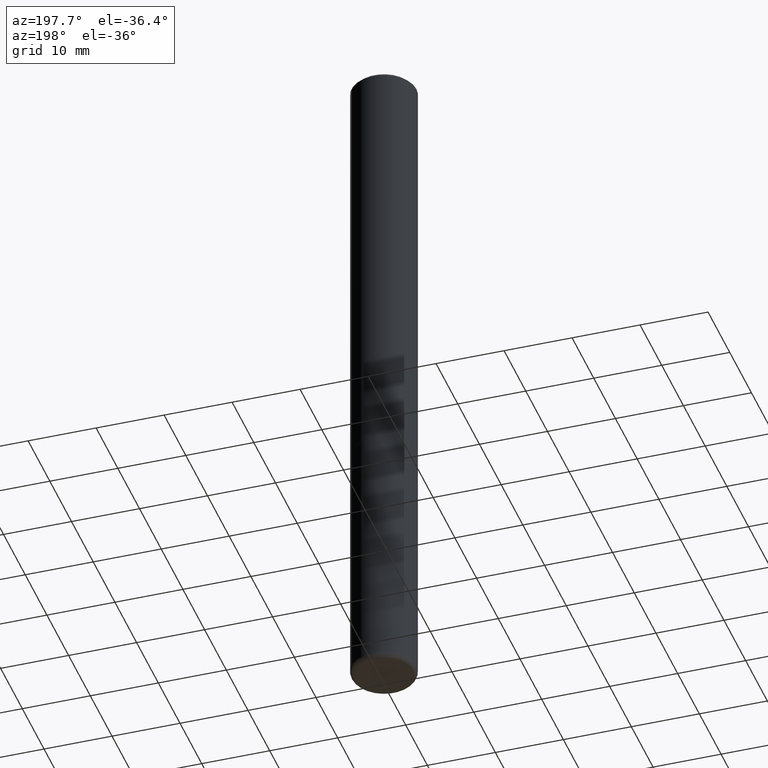
[diagram: clean part render]
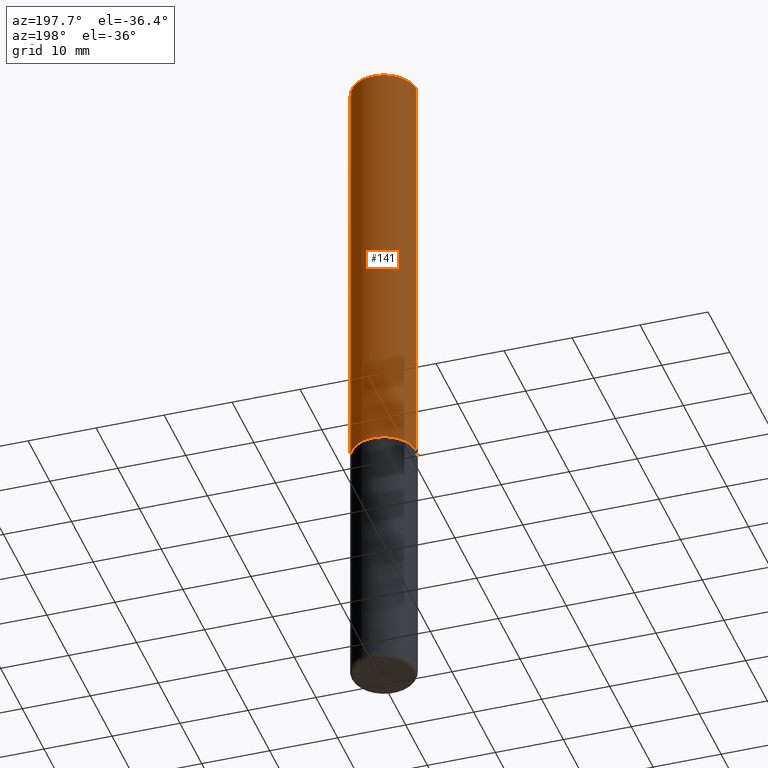
[diagram: same view with one face highlighted and labeled with its STEP entity id]
A machine part, auxiliary view. The second image highlights one B-rep face of the part: STEP entity #141.
In plain terms, the highlighted cylindrical surface (edge-blend (fillet) strip) has radius 4.7625 mm, axis along (-0, 0, 1).
Its self-contained STEP definition (entity closure, byte-faithful):
#3 = VECTOR ( 'NONE', #189, 39.37007874015748143 ) ;
#9 = CARTESIAN_POINT ( 'NONE',  ( 0.1874999999999999722, -1.003451736783519694E-14, -2.499000000000000110 ) ) ;
#37 = CARTESIAN_POINT ( 'NONE',  ( 0.000000000000000000, 0.000000000000000000, 0.000000000000000000 ) ) ;
#49 = DIRECTION ( 'NONE',  ( 1.000000000000000000, -6.982962677686269077E-15, 0.000000000000000000 ) ) ;
#56 = LINE ( 'NONE', #315, #171 ) ;
#84 = DIRECTION ( 'NONE',  ( 1.000000000000000000, -6.982962677686267499E-15, 0.000000000000000000 ) ) ;
#101 = VERTEX_POINT ( 'NONE', #198 ) ;
#107 = EDGE_CURVE ( 'NONE', #123, #101, #343, .T. ) ;
#115 = DIRECTION ( 'NONE',  ( -2.445468806185136597E-29, 3.491481338843145583E-15, 1.000000000000000000 ) ) ;
#117 = VERTEX_POINT ( 'NONE', #285 ) ;
#123 = VERTEX_POINT ( 'NONE', #353 ) ;
#128 = CIRCLE ( 'NONE', #182, 0.1874999999999999722 ) ;
#141 = ADVANCED_FACE ( 'NONE', ( #294 ), #442, .T. ) ;
#142 = EDGE_CURVE ( 'NONE', #117, #101, #56, .T. ) ;
#152 = AXIS2_PLACEMENT_3D ( 'NONE', #37, #214, #193 ) ;
#161 = ORIENTED_EDGE ( 'NONE', *, *, #176, .F. ) ;
#171 = VECTOR ( 'NONE', #321, 39.37007874015748143 ) ;
#175 = EDGE_CURVE ( 'NONE', #298, #117, #128, .T. ) ;
#176 = EDGE_CURVE ( 'NONE', #298, #123, #209, .T. ) ;
#178 = CARTESIAN_POINT ( 'NONE',  ( 4.890937612370290675E-31, -6.982962677686316261E-17, -0.02000000000000007327 ) ) ;
#182 = AXIS2_PLACEMENT_3D ( 'NONE', #437, #401, #49 ) ;
#189 = DIRECTION ( 'NONE',  ( -2.445468806185136877E-29, 3.491481338843145188E-15, 1.000000000000000000 ) ) ;
#193 = DIRECTION ( 'NONE',  ( 1.000000000000000000, -6.982962677686266711E-15, 4.876176775795935793E-29 ) ) ;
#198 = CARTESIAN_POINT ( 'NONE',  ( -0.1874999999999996669, 1.239475875289309738E-15, -0.02000000000000007327 ) ) ;
#209 = LINE ( 'NONE', #245, #3 ) ;
#214 = DIRECTION ( 'NONE',  ( -2.445468806185136597E-29, 3.491481338843145583E-15, 1.000000000000000000 ) ) ;
#245 = CARTESIAN_POINT ( 'NONE',  ( 0.1874999999999998335, -1.309305502066173825E-15, 9.142831454617371204E-30 ) ) ;
#264 = ORIENTED_EDGE ( 'NONE', *, *, #175, .T. ) ;
#285 = CARTESIAN_POINT ( 'NONE',  ( -0.1874999999999999722, -3.065253116722752402E-15, -2.499000000000000110 ) ) ;
#294 = FACE_OUTER_BOUND ( 'NONE', #411, .T. ) ;
#298 = VERTEX_POINT ( 'NONE', #9 ) ;
#315 = CARTESIAN_POINT ( 'NONE',  ( -0.1874999999999998335, 1.332267629550186665E-15, -9.223003294227939583E-30 ) ) ;
#321 = DIRECTION ( 'NONE',  ( -2.445468806185136877E-29, 3.491481338843145188E-15, 1.000000000000000000 ) ) ;
#333 = ORIENTED_EDGE ( 'NONE', *, *, #142, .T. ) ;
#343 = CIRCLE ( 'NONE', #432, 0.1874999999999996669 ) ;
#353 = CARTESIAN_POINT ( 'NONE',  ( 0.1874999999999996669, -1.356173001359023100E-15, -0.02000000000000007327 ) ) ;
#368 = ORIENTED_EDGE ( 'NONE', *, *, #107, .F. ) ;
#401 = DIRECTION ( 'NONE',  ( -2.445468806185136597E-29, 3.491481338843145583E-15, 1.000000000000000000 ) ) ;
#411 = EDGE_LOOP ( 'NONE', ( #264, #333, #368, #161 ) ) ;
#432 = AXIS2_PLACEMENT_3D ( 'NONE', #178, #115, #84 ) ;
#437 = CARTESIAN_POINT ( 'NONE',  ( 6.111226546656657010E-29, -8.725211865769021935E-15, -2.499000000000000110 ) ) ;
#442 = CYLINDRICAL_SURFACE ( 'NONE', #152, 0.1874999999999998335 ) ;